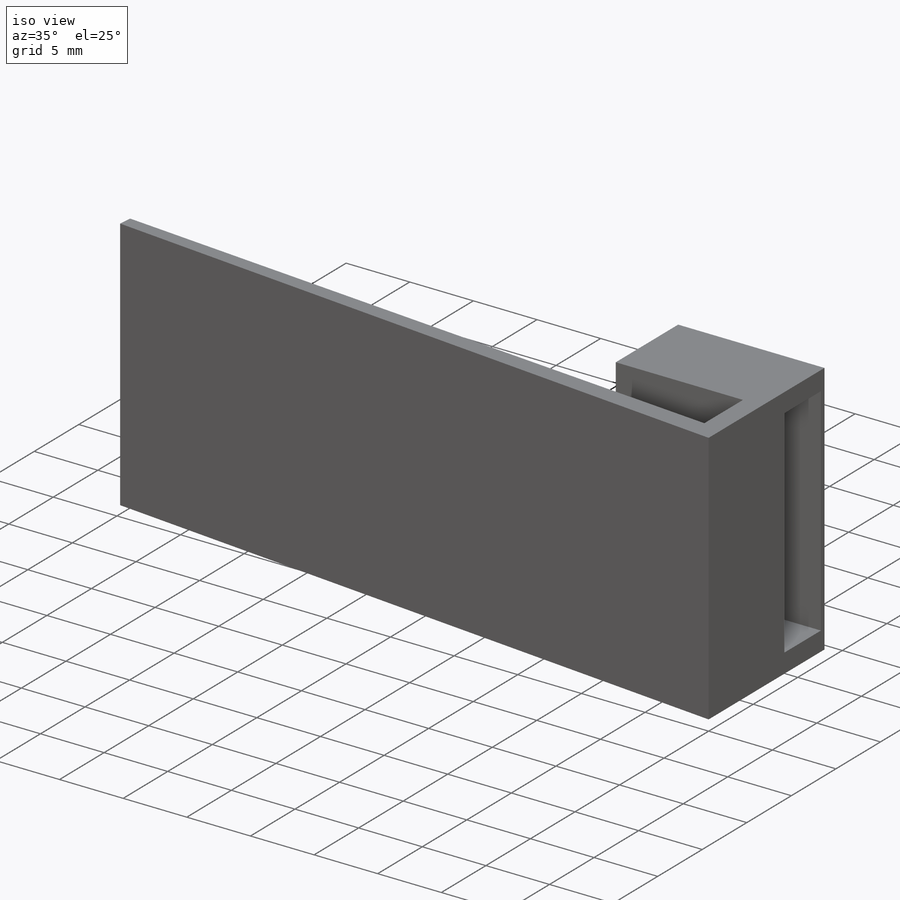
[diagram: iso view]
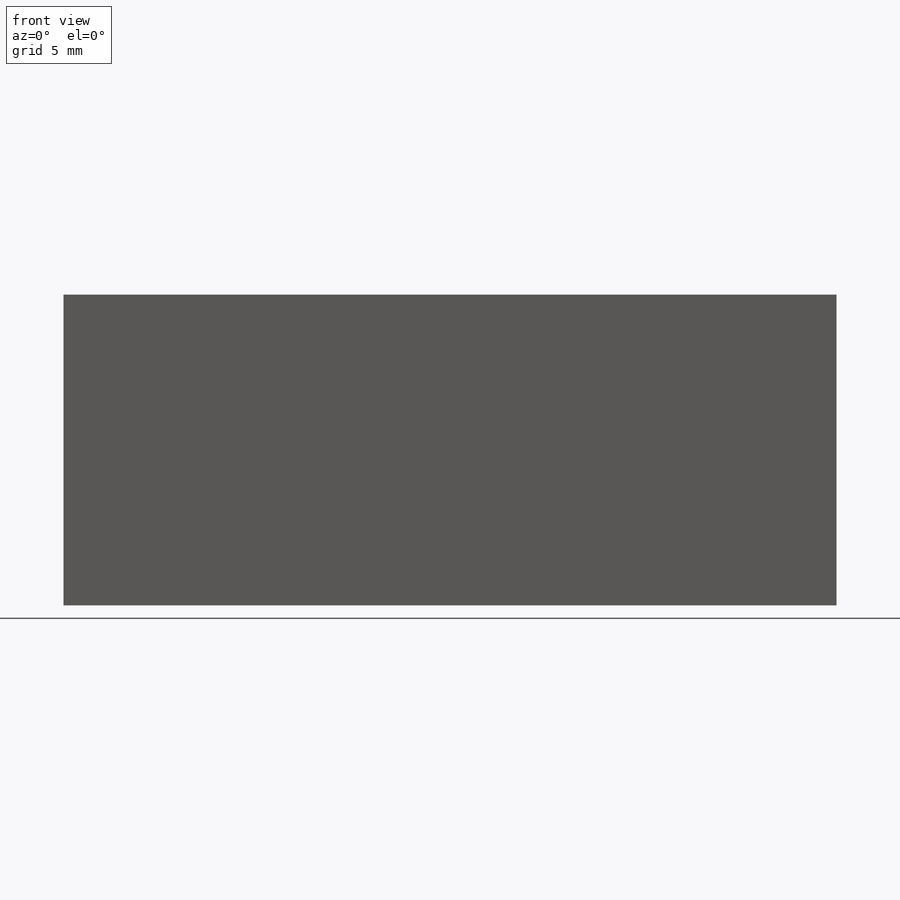
[diagram: front view]
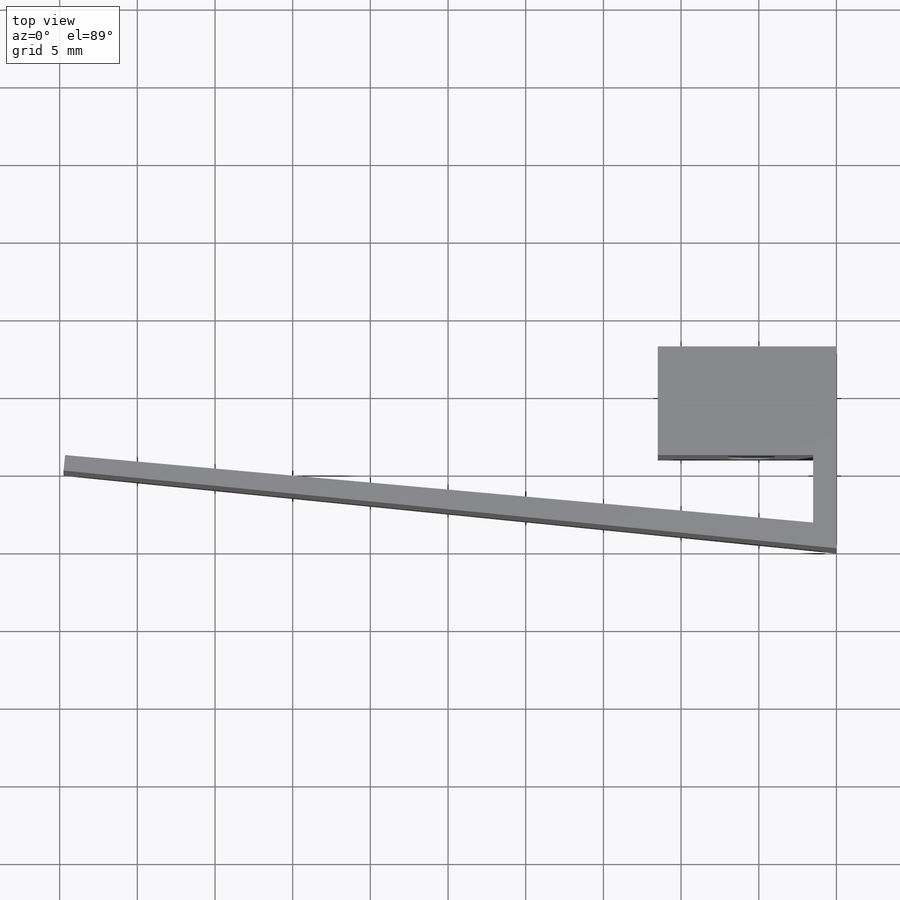
[diagram: top view]
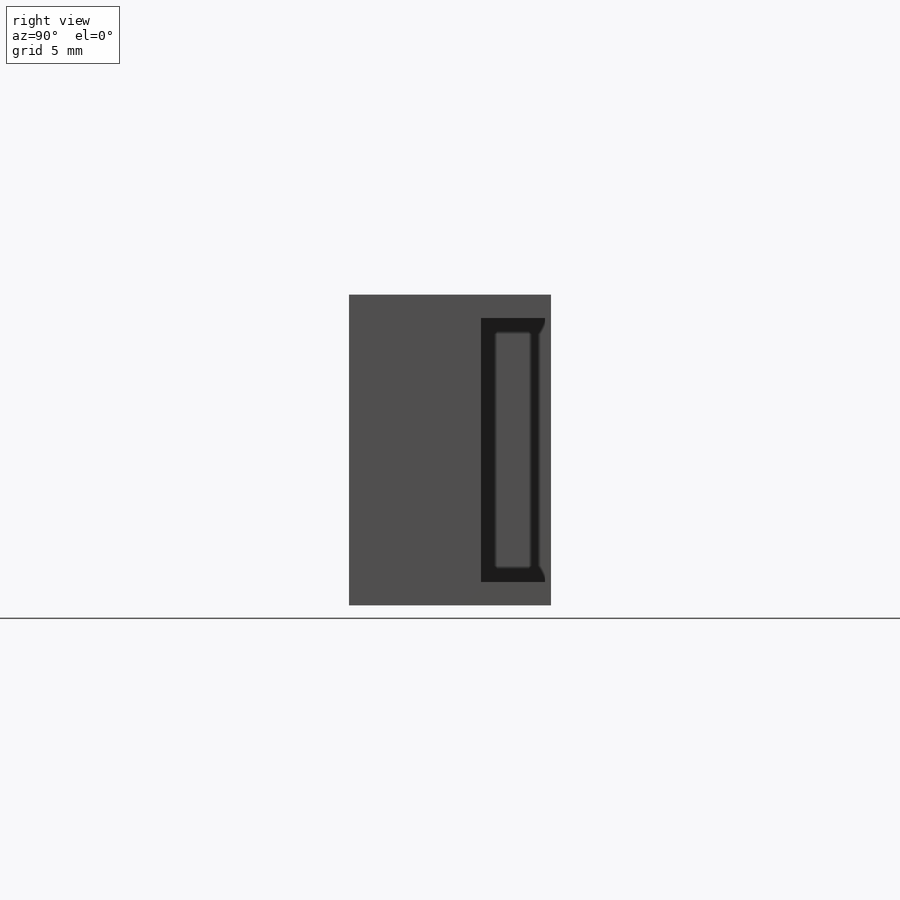
[diagram: right view]
SOLIDWORKS PART (.sldprt)
format: sldprt  version: not decoded by parser v0  size: 253,952 bytes
history: native  units: mm
features: sketch x5, plane x3, cut_extrude x3, extrude x2, material x1 + 1 further entry (+8 scaffold rows collapsed)
feature tree (23):
  scaffold x8  (default folders/planes/origin — collapsed)
  material  "Material <sin especificar>"
  "Anotaciones"  RD1=4.1mm RD2=4.123106mm
  plane  "Alzado"
  plane  "Planta"
  plane  "Vista lateral"
  sketch  "Croquis1"  dims[c1.D1=50.0mm c1.D2=10.0mm c1.D3=1.5mm c1.D4=1.0mm c1.D5=1.5mm c1.D6=6.0mm c1.D7=1.5mm c2.D3=7.0mm c2.D6=13.0mm c2.D8=~4.341519mm]
  extrude  "Saliente-Extruir1"  Depth=20mm
  sketch  "Croquis4"  dims[D1=8.0mm D2=17.0mm D3=1.5mm]
  cut_extrude  "Cortar-Extruir2"  Depth=5.5mm
  cut_extrude  "Cortar-Extruir3"  [1 undecoded]
  sketch  "Croquis4<4>"  dims[D1=4.5mm]
  sketch  "Croquis6"  dims[D1=3.0mm D2=13.0mm D3=~4.02638mm]
  cut_extrude  "Cortar-Extruir4"  [1 undecoded]
  sketch  "Croquis7"  dims[D1=0.4mm]
  extrude  "Saliente-Extruir3"  [1 undecoded]
decode coverage: 7 of 10 modeling features carry decoded parameters; 1 rows unclassified (native names shown)
note: ~ marks probable driven/reference dimensions
note: 3 parameter values undecoded
summary: no parameter record found for 3 features
note: suppression state not decoded; provenance and decode notes live in map.json
